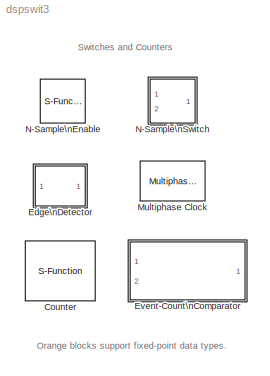
MODEL dspswit3
KIND library
BLOCK [S-Function] Counter
  FunctionName = sdspcount2
  MaskCallbackString = |dspblkcount2|dspblkcount2|||dspblkcount2||dspblkcount2|||dspblkcount2|
  MaskDescription = Count up or down based on input count events.  If the \"Count event\" is set to \"Free running\" the output updates at the specified sample time.
  MaskDisplay = port_label(p.in1,   p.i1,  p.i1s);\nport_label(p.in2,   p.i2,  p.i2s);\nport_label(p.out, p.o1, p.o1s);\nport_label(p.out, p.o2, p.o2s);   \ndisp(xy.direction)
  MaskEnableString = on,on,on,on,on,on,on,on,off,off,on,on
  MaskHelp = web(dspbhelp);
  MaskIconFrame = on
  MaskIconOpaque = on
  MaskIconRotate = none
  MaskIconUnits = autoscale
  MaskInitialization = [p,xy] = dspblkcount2('icon');\n
  MaskPromptString = Count direction:|Count event:|Counter size:|Maximum count:|Initial count:|Output:|Hit value:|Reset input|Samples per output frame|Sample time:|Count data type:|Hit data type:
  MaskSelfModifiable = on
  MaskStyleString = popup(Up|Down),popup(Rising edge|Falling edge|Either edge|Non-zero sample|Free running),popup(8 bits|16 bits|32 bits|User defined),edit,edit,popup(Count|Hit|Count and Hit),edit,checkbox,edit,edit,popup(double|single|int8|uint8|int16|uint16|int32|uint32),popup(Logical|Boolean)
  MaskToolTipString = on,on,on,on,on,on,on,on,on,on,on,on
  MaskTunableValueString = on,off,off,on,on,off,on,off,off,off,off,off
  MaskType = Counter
  MaskValueString = Up|Rising edge|User defined|255|0|Count and Hit|32|on|1|1|Double|Logical
  MaskVarAliasString = ,,,,,,,,,,,
  MaskVariables = Direction=@1;CountEvent=@2;CounterSize=@3;MaxCount=@4;InitialCount=@5;Output=@6;HitValue=@7;ResetInput=@8;SamplesPerFrame=@9;Ts=@10;CntDtype=@11;HitDtype=@12;
  MaskVisibilityString = on,on,on,on,on,on,on,on,on,on,on,on
  Parameters = Direction, CountEvent, CounterSize, MaxCount, InitialCount, Output, HitValue, ResetInput, SamplesPerFrame, Ts, CntDtype, HitDtype
  Ports = [2, 2]
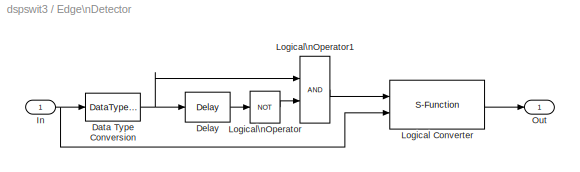
BLOCK [SubSystem] Edge\nDetector
  CopyFcn = dspfixptcopycallback
  MaskDescription = Output a unity amplitude pulse for one sample period in response to a transition from zero to a nonzero value.
  MaskDisplay = plot(x,y)
  MaskHelp = web(dspbhelp);\n
  MaskIconFrame = on
  MaskIconOpaque = on
  MaskIconRotate = none
  MaskIconUnits = normalized
  MaskInitialization = [x,y] = dspblkedetect2;
  MaskSelfModifiable = on
  MaskType = Edge Detector
  Ports = [1, 1]
  TreatAsAtomicUnit = off
BLOCK [DataTypeConversion] Edge\nDetector/Data Type Conversion
  OutDataTypeMode = boolean
BLOCK [Reference] Edge\nDetector/Delay  REF=dspsigops/Delay
  Ports = [1, 1]
  SourceBlock = dspsigops/Delay
  SourceType = Delay
  delay = 1
  dif_ic_for_ch = off
  dif_ic_for_dly = off
  dly_unit = Samples
  ic = 1
  ic_detail = on
  reset_popup = None
BLOCK [Inport] Edge\nDetector/In
BLOCK [S-Function] Edge\nDetector/Logical Converter
  FunctionName = sdspboolconv
  MaskDisplay = disp('Logical\\nConverter');\n\n\n\n\nport_label('input',1, 'In');\n\n\n\n\nport_label('input',2, 'Ref');
  MaskIconFrame = on
  MaskIconOpaque = on
  MaskIconRotate = none
  MaskIconUnits = autoscale
  Ports = [2, 1]
BLOCK [Logic] Edge\nDetector/Logical\nOperator
  Inputs = 1
  Operator = NOT
  Ports = [1, 1]
BLOCK [Logic] Edge\nDetector/Logical\nOperator1
  Ports = [2, 1]
BLOCK [Outport] Edge\nDetector/Out
  InitialOutput = 0
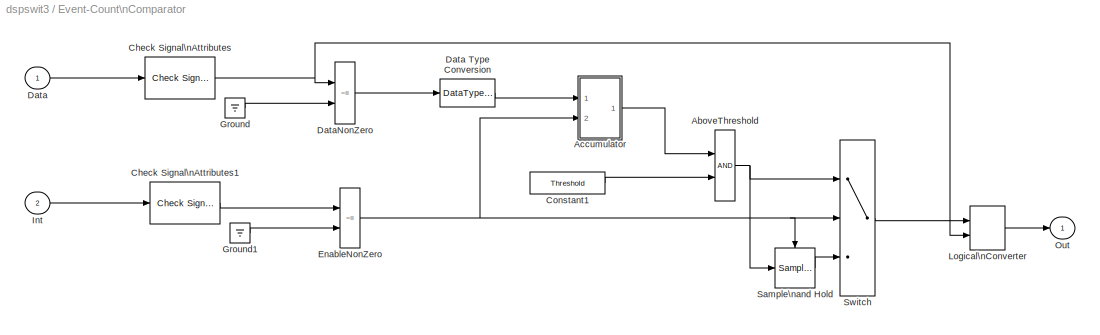
BLOCK [SubSystem] Event-Count\nComparator
  CopyFcn = dspfixptcopycallback
  MaskDescription = Output is true if the number of nonzero inputs over time equals or exceeds the Event threshold during the enable interval.   A nonzero input on the interval port (Int) enables the block to begin counting and resets the output.  Inputs must be discrete-time scalars.
  MaskDisplay = disp('Event-Count\\nComparator')\ntext(0.95,0.1,['Thresh:' s],'horiz','right')
  MaskEnableString = on
  MaskHelp = web(dspbhelp);
  MaskIconFrame = on
  MaskIconOpaque = off
  MaskIconRotate = none
  MaskIconUnits = normalized
  MaskInitialization = dtcBlk = [gcb '/Data Type Conversion'];\nif isempty(Threshold)\n	s=&1;\n	set_param(dtcBlk,'DataType','uint8');\nelse\n	dblThresh = double(Threshold);\n	s=num2str(dblThresh);\n	if (dblThresh <= 255)\n    	set_param(dtcBlk,'DataType','uint8');\n	elseif (dblThresh <= 65535)\n    	set_param(dtcBlk,'DataType','uint16');\n	else\n    	set_param(dtcBlk,'DataType','uint32');\n	end\nend
  MaskPromptString = Event threshold:
  MaskSelfModifiable = on
  MaskStyleString = edit
  MaskToolTipString = on
  MaskTunableValueString = on
  MaskType = Event-Count Comparator
  MaskValueString = 10
  MaskVariables = Threshold=@1;
  MaskVisibilityString = on
  Ports = [2, 1]
  TreatAsAtomicUnit = off
BLOCK [RelationalOperator] Event-Count\nComparator/AboveThreshold
  LogicOutDataTypeMode = Boolean
  ShowAdditionalParam = on
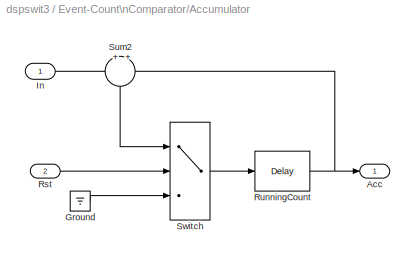
BLOCK [SubSystem] Event-Count\nComparator/Accumulator
  Ports = [2, 1]
  TreatAsAtomicUnit = off
BLOCK [Outport] Event-Count\nComparator/Accumulator/Acc
BLOCK [Ground] Event-Count\nComparator/Accumulator/Ground
BLOCK [Inport] Event-Count\nComparator/Accumulator/In
BLOCK [Inport] Event-Count\nComparator/Accumulator/Rst
  Port = 2
BLOCK [Reference] Event-Count\nComparator/Accumulator/RunningCount  REF=dspsigops/Delay
  Ports = [1, 1]
  SourceBlock = dspsigops/Delay
  SourceType = Delay
  delay = 1
  dif_ic_for_ch = off
  dif_ic_for_dly = off
  dly_unit = Samples
  ic = 0
  ic_detail = off
  reset_popup = None
BLOCK [Sum] Event-Count\nComparator/Accumulator/Sum2
  IconShape = round
  Inputs = +|+
  Ports = [2, 1]
  ShowAdditionalParam = on
BLOCK [Switch] Event-Count\nComparator/Accumulator/Switch
  Criteria = u2 ~= 0
  InputSameDT = off
  SaturateOnIntegerOverflow = off
  ShowAdditionalParam = on
  Threshold = 1
  ZeroCross = off
BLOCK [Reference] Event-Count\nComparator/Check Signal\nAttributes  REF=dspsigattribs/Check Signal\nAttributes
  Complexity = Ignore
  DatatypeCheckMethod = Ignore
  DatatypeGeneral = Boolean
  Dimensions = Scalar (1-D or 2-D)
  DimsCheckMethod = Is...
  DtypeFixedSpecific = Any fixed-point
  DtypeFloatSpecific = Any floating-point
  DtypeIntSpecific = Any integer
  Frame = Ignore
  Ports = [1, 1]
  SampleMode = Discrete
  SigAttribCheckMethod = Does not match attributes exactly
  SourceBlock = dspsigattribs/Check Signal\nAttributes
  SourceType = Check Signal Attributes
BLOCK [Reference] Event-Count\nComparator/Check Signal\nAttributes1  REF=dspsigattribs/Check Signal\nAttributes
  Complexity = Ignore
  DatatypeCheckMethod = Ignore
  DatatypeGeneral = Boolean
  Dimensions = Scalar (1-D or 2-D)
  DimsCheckMethod = Is...
  DtypeFixedSpecific = Any fixed-point
  DtypeFloatSpecific = Any floating-point
  DtypeIntSpecific = Any integer
  Frame = Ignore
  Ports = [1, 1]
  SampleMode = Discrete
  SigAttribCheckMethod = Does not match attributes exactly
  SourceBlock = dspsigattribs/Check Signal\nAttributes
  SourceType = Check Signal Attributes
BLOCK [Constant] Event-Count\nComparator/Constant1
  OutDataTypeMode = Inherit via back propagation
  ShowAdditionalParam = on
  Value = Threshold
BLOCK [Inport] Event-Count\nComparator/Data
BLOCK [DataTypeConversion] Event-Count\nComparator/Data Type Conversion
  OutDataTypeMode = uint8
  SaturateOnIntegerOverflow = off
BLOCK [RelationalOperator] Event-Count\nComparator/DataNonZero
  LogicOutDataTypeMode = Boolean
  Operator = ~=
  ShowAdditionalParam = on
BLOCK [RelationalOperator] Event-Count\nComparator/EnableNonZero
  LogicOutDataTypeMode = Boolean
  Operator = ~=
  ShowAdditionalParam = on
BLOCK [Ground] Event-Count\nComparator/Ground
BLOCK [Ground] Event-Count\nComparator/Ground1
BLOCK [Inport] Event-Count\nComparator/Int
  Port = 2
BLOCK [S-Function] Event-Count\nComparator/Logical\nConverter
  FunctionName = sdspboolconv
  MaskDisplay = port_label('input',1, 'In');\nport_label('input',2, 'Ref');
  MaskIconFrame = on
  MaskIconOpaque = on
  MaskIconRotate = none
  MaskIconUnits = autoscale
  Ports = [2, 1]
BLOCK [Outport] Event-Count\nComparator/Out
BLOCK [Reference] Event-Count\nComparator/Sample\nand Hold  REF=dspsigops/Sample\nand Hold
  Ports = [1, 1, 0, 1]
  SourceBlock = dspsigops/Sample\nand Hold
  SourceType = Sample and Hold
  initCond = 0
  trig = Falling edge
BLOCK [Switch] Event-Count\nComparator/Switch
  Criteria = u2 ~= 0
  SaturateOnIntegerOverflow = off
  Threshold = 1
BLOCK [Reference] Multiphase Clock  REF=dspsrcs4/Multiphase Clock
  ActiveLevel = High (1)
  ClkFreq = 1
  DataType = Logical
  DutyCycle = 3
  NumPhases = 4
  Ports = [0, 1]
  SourceBlock = dspsrcs4/Multiphase Clock
  SourceType = Multiphase Clock
  StartPhase = 1
BLOCK [S-Function] N-Sample\nEnable
  CopyFcn = dspfixptcopycallback
  FunctionName = sdspnsamp2
  MaskCallbackString = ||dspblknsample|dspblknsample||
  MaskDescription = Transition from inactive to active after the first N samples.
  MaskDisplay = plot(x,y);\ntext(1, 0.05, s,'horiz','right','vert','base');\nport_label(p.side,p.port,p.label);
  MaskEnableString = on,on,on,off,on,on
  MaskHelp = web(dspbhelp);
  MaskIconFrame = on
  MaskIconOpaque = on
  MaskIconRotate = port
  MaskIconUnits = normalized
  MaskInitialization = N = double(N);\n[s,x,y, p] = dspblknsample('icon', N, &1);\nTriggerTypeo = dspblknsample('update', TriggerType);\n\n\n
  MaskPromptString = Trigger count, N:|Active level:|Reset input|Trigger type:|Sample time:|Output data type:
  MaskSelfModifiable = on
  MaskStyleString = edit,popup(High (1)|Low (0)),checkbox,popup(Rising edge|Falling edge|Either edge|Non-zero sample),edit,popup(Logical|Boolean)
  MaskToolTipString = on,on,on,on,on,on
  MaskTunableValueString = on,on,off,off,off,off
  MaskType = N-Sample Enable
  MaskValueString = 8|High (1)|off|Rising edge|1|Logical
  MaskVarAliasString = ,,,,,
  MaskVariables = N=@1;ActiveLevel=@2;reset=@3;TriggerType=@4;Ts=@5;DataType=@6;
  MaskVisibilityString = on,on,on,on,on,on
  Parameters = TriggerTypeo, N, Ts, ActiveLevel,DataType,reset
  Ports = [0, 1]
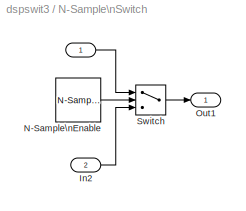
BLOCK [SubSystem] N-Sample\nSwitch
  CopyFcn = dspfixptcopycallback
  MaskCallbackString = |dspblknswit||
  MaskDescription = Output N samples from the top port.  Thereafter, output samples from the bottom port.
  MaskDisplay = plot(x,y);\ntext(1, 0.05, s,'horiz','right','vert','base');\n\n
  MaskEnableString = on,on,off,on
  MaskHelp = web(dspbhelp);
  MaskIconFrame = on
  MaskIconOpaque = off
  MaskIconRotate = none
  MaskIconUnits = normalized
  MaskInitialization = N = double(N);\n[s, x,y] = dspblknswit('icon',N,&1);\ndspblknswit('update');
  MaskPromptString = Switch count, N:|Reset input|Trigger type:|Sample time:
  MaskSelfModifiable = on
  MaskStyleString = edit,checkbox,popup(Rising edge|Falling edge|Either edge|Non-zero sample),edit
  MaskToolTipString = on,on,on,on
  MaskTunableValueString = on,off,on,off
  MaskType = N-Sample Switch
  MaskValueString = 8|off|Rising edge|0.1
  MaskVarAliasString = ,,,
  MaskVariables = N=@1;reset=@2;TriggerType=@3;Ts=@4;
  MaskVisibilityString = on,on,on,on
  Ports = [2, 1]
  TreatAsAtomicUnit = off
BLOCK [Inport] N-Sample\nSwitch/ 
BLOCK [Inport] N-Sample\nSwitch/In2
  Port = 2
BLOCK [Reference] N-Sample\nSwitch/N-Sample\nEnable  REF=dspswit3/N-Sample\nEnable
  ActiveLevel = Low (0)
  DataType = Boolean
  N = N
  Ports = [0, 1]
  SourceBlock = dspswit3/N-Sample\nEnable
  SourceType = N-Sample Enable
  TriggerType = Rising edge
  Ts = Ts
  reset = off
BLOCK [Outport] N-Sample\nSwitch/Out1
BLOCK [Switch] N-Sample\nSwitch/Switch
  SaturateOnIntegerOverflow = off
  Threshold = 1
ANNOTATION (root): Orange blocks support fixed-point data types.
ANNOTATION (root): Switches and Counters
NET Edge\nDetector/Data Type Conversion:1 -> Edge\nDetector/Delay:1, Edge\nDetector/Logical\nOperator1:1
LINE Edge\nDetector/Delay:1 -> Edge\nDetector/Logical\nOperator:1
NET Edge\nDetector/In:1 -> Edge\nDetector/Data Type Conversion:1, Edge\nDetector/Logical Converter:2
LINE Edge\nDetector/Logical Converter:1 -> Edge\nDetector/Out:1
LINE Edge\nDetector/Logical\nOperator1:1 -> Edge\nDetector/Logical Converter:1
LINE Edge\nDetector/Logical\nOperator:1 -> Edge\nDetector/Logical\nOperator1:2
NET Event-Count\nComparator/AboveThreshold:1 -> Event-Count\nComparator/Sample\nand Hold:1, Event-Count\nComparator/Switch:1
LINE Event-Count\nComparator/Accumulator/Ground:1 -> Event-Count\nComparator/Accumulator/Switch:3
LINE Event-Count\nComparator/Accumulator/In:1 -> Event-Count\nComparator/Accumulator/Sum2:1
LINE Event-Count\nComparator/Accumulator/Rst:1 -> Event-Count\nComparator/Accumulator/Switch:2
NET Event-Count\nComparator/Accumulator/RunningCount:1 -> Event-Count\nComparator/Accumulator/Acc:1, Event-Count\nComparator/Accumulator/Sum2:2
LINE Event-Count\nComparator/Accumulator/Sum2:1 -> Event-Count\nComparator/Accumulator/Switch:1
LINE Event-Count\nComparator/Accumulator/Switch:1 -> Event-Count\nComparator/Accumulator/RunningCount:1
LINE Event-Count\nComparator/Accumulator:1 -> Event-Count\nComparator/AboveThreshold:1
LINE Event-Count\nComparator/Check Signal\nAttributes1:1 -> Event-Count\nComparator/EnableNonZero:1
NET Event-Count\nComparator/Check Signal\nAttributes:1 -> Event-Count\nComparator/DataNonZero:1, Event-Count\nComparator/Logical\nConverter:2
LINE Event-Count\nComparator/Constant1:1 -> Event-Count\nComparator/AboveThreshold:2
LINE Event-Count\nComparator/Data Type Conversion:1 -> Event-Count\nComparator/Accumulator:1
LINE Event-Count\nComparator/Data:1 -> Event-Count\nComparator/Check Signal\nAttributes:1
LINE Event-Count\nComparator/DataNonZero:1 -> Event-Count\nComparator/Data Type Conversion:1
NET Event-Count\nComparator/EnableNonZero:1 -> Event-Count\nComparator/Accumulator:2, Event-Count\nComparator/Sample\nand Hold:trigger, Event-Count\nComparator/Switch:2
LINE Event-Count\nComparator/Ground1:1 -> Event-Count\nComparator/EnableNonZero:2
LINE Event-Count\nComparator/Ground:1 -> Event-Count\nComparator/DataNonZero:2
LINE Event-Count\nComparator/Int:1 -> Event-Count\nComparator/Check Signal\nAttributes1:1
LINE Event-Count\nComparator/Logical\nConverter:1 -> Event-Count\nComparator/Out:1
LINE Event-Count\nComparator/Sample\nand Hold:1 -> Event-Count\nComparator/Switch:3
LINE Event-Count\nComparator/Switch:1 -> Event-Count\nComparator/Logical\nConverter:1
LINE N-Sample\nSwitch/ :1 -> N-Sample\nSwitch/Switch:1
LINE N-Sample\nSwitch/In2:1 -> N-Sample\nSwitch/Switch:3
LINE N-Sample\nSwitch/N-Sample\nEnable:1 -> N-Sample\nSwitch/Switch:2
LINE N-Sample\nSwitch/Switch:1 -> N-Sample\nSwitch/Out1:1
note: NET lines group one-source signal fan-out (src -> all destinations, sorted); 1:1 wires keep LINE
